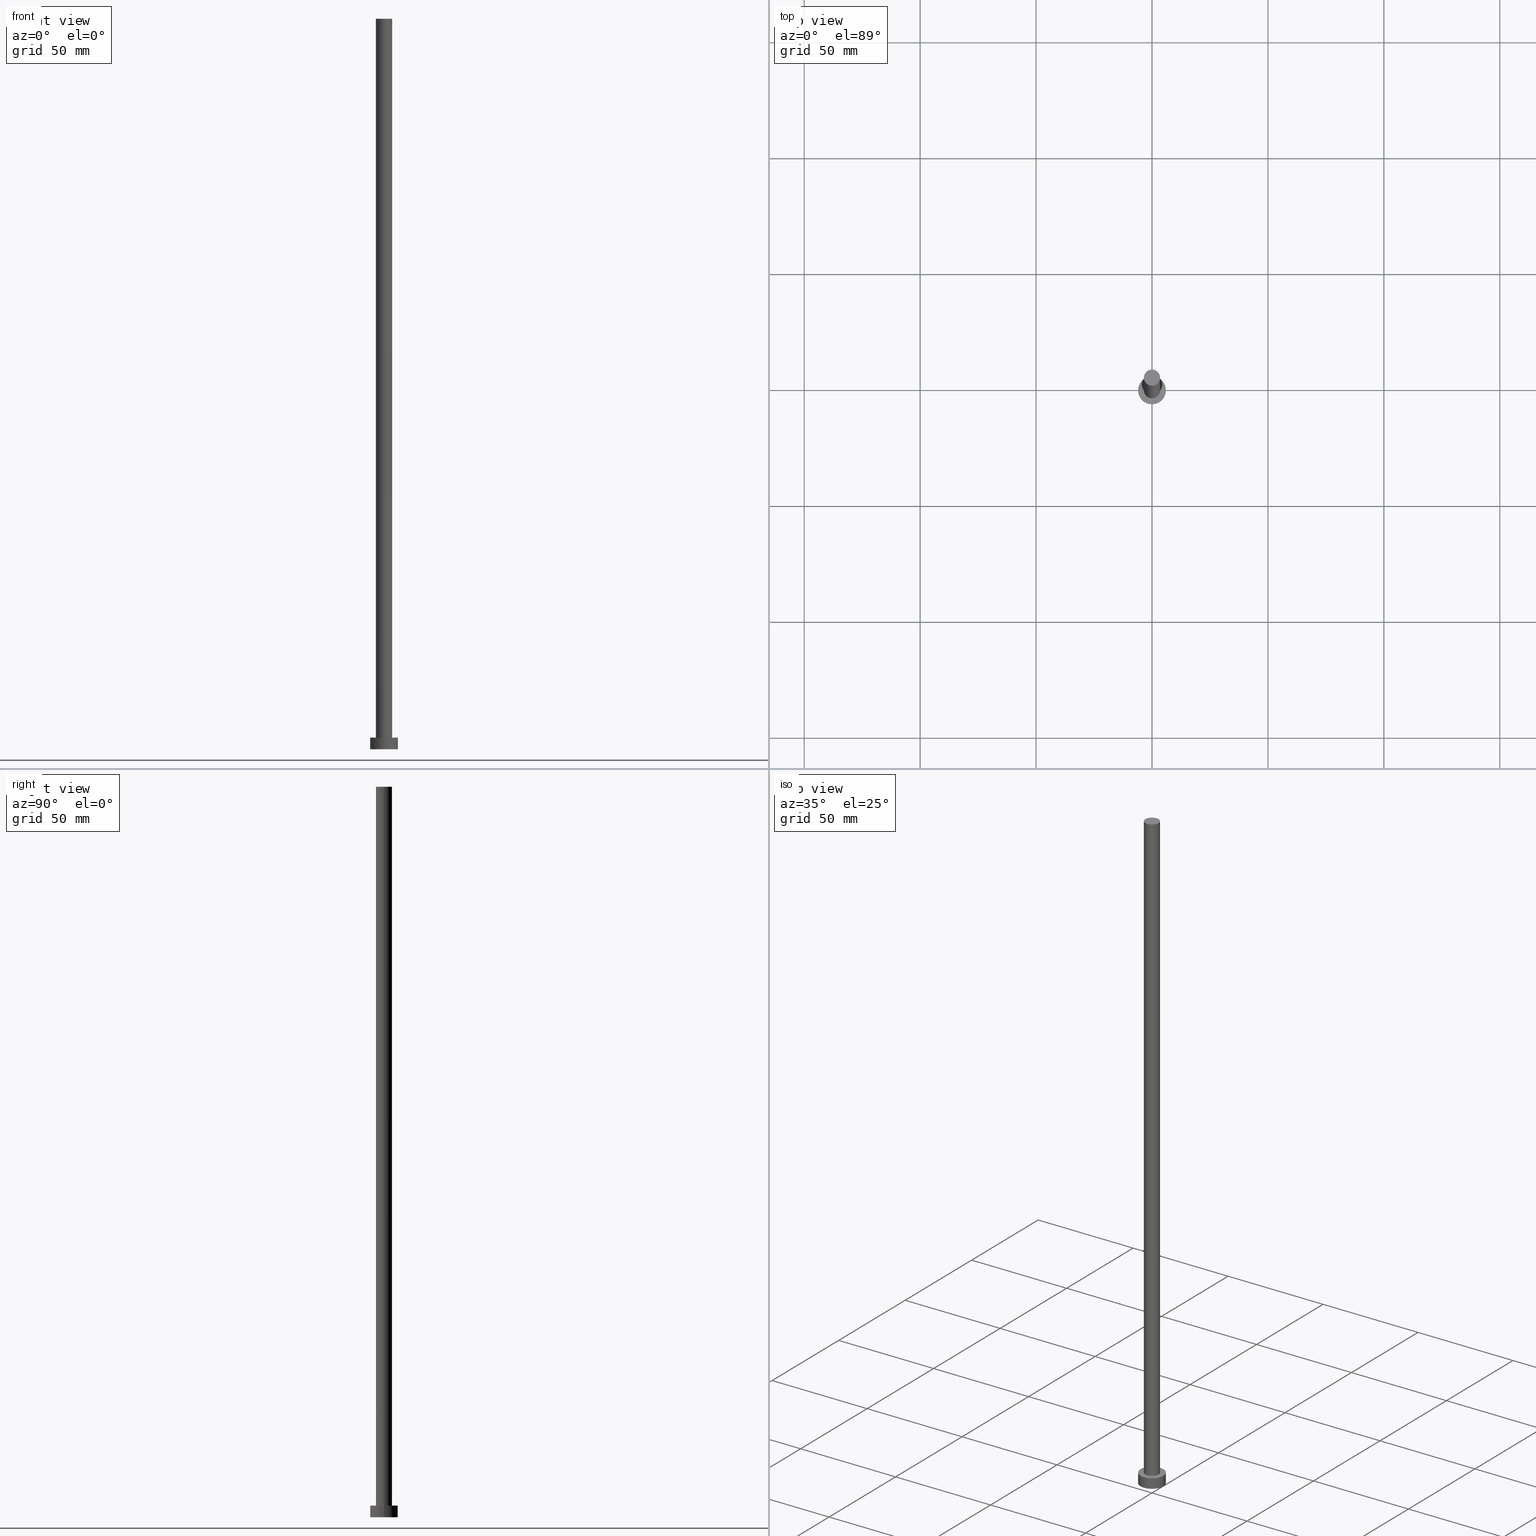
[diagram: canonical four-view strip — front | top / right | iso, engineering-drawing reading convention]
A machine part, canonical four-view strip (front | top / right | iso — engineering-drawing reading convention). The complete STEP part file that produces these views, byte-faithful:
ISO-10303-21;
HEADER;
FILE_DESCRIPTION (( 'STEP AP203' ),
    '1' );
FILE_NAME ('d23e.STEP',
    '2023-02-13T14:48:52',
    ( '' ),
    ( '' ),
    'SwSTEP 2.0',
    'SolidWorks 2019',
    '' );
FILE_SCHEMA (( 'CONFIG_CONTROL_DESIGN' ));
ENDSEC;

DATA;
#1 = EDGE_LOOP ( 'NONE', ( #119, #77, #221, #100 ) ) ;
#2 = DATE_TIME_ROLE ( 'creation_date' ) ;
#3 = APPROVAL_PERSON_ORGANIZATION ( #182, #51, #78 ) ;
#4 = ORIENTED_EDGE ( 'NONE', *, *, #212, .F. ) ;
#5 = CLOSED_SHELL ( 'NONE', ( #72, #253, #39, #215, #123, #49, #187 ) ) ;
#6 = ORIENTED_EDGE ( 'NONE', *, *, #227, .F. ) ;
#7 = DIRECTION ( 'NONE',  ( 0.000000000000000000, 0.000000000000000000, 1.000000000000000000 ) ) ;
#8 = DIRECTION ( 'NONE',  ( -0.000000000000000000, -0.000000000000000000, -1.000000000000000000 ) ) ;
#9 = LOCAL_TIME ( 15, 48, 52.00000000000000000, #219 ) ;
#10 = CARTESIAN_POINT ( 'NONE',  ( -3.500000000000000000, 0.000000000000000000, 5.000000000000000000 ) ) ;
#11 = CIRCLE ( 'NONE', #41, 6.000000000000000888 ) ;
#12 = DIRECTION ( 'NONE',  ( 0.000000000000000000, 0.000000000000000000, 1.000000000000000000 ) ) ;
#13 = DIRECTION ( 'NONE',  ( 1.000000000000000000, 0.000000000000000000, 0.000000000000000000 ) ) ;
#14 = FACE_OUTER_BOUND ( 'NONE', #156, .T. ) ;
#15 =( NAMED_UNIT ( * ) PLANE_ANGLE_UNIT ( ) SI_UNIT ( $, .RADIAN. ) );
#16 = AXIS2_PLACEMENT_3D ( 'NONE', #30, #248, #242 ) ;
#17 = DATE_AND_TIME ( #214, #71 ) ;
#18 = CC_DESIGN_DATE_AND_TIME_ASSIGNMENT ( #20, #2, ( #35 ) ) ;
#19 = MANIFOLD_SOLID_BREP ( 'P�idat vysunut�m3', #5 ) ;
#20 = DATE_AND_TIME ( #94, #9 ) ;
#21 = DIRECTION ( 'NONE',  ( 0.000000000000000000, 0.000000000000000000, 1.000000000000000000 ) ) ;
#22 = AXIS2_PLACEMENT_3D ( 'NONE', #56, #24, #73 ) ;
#23 = VERTEX_POINT ( 'NONE', #224 ) ;
#24 = DIRECTION ( 'NONE',  ( -0.000000000000000000, -0.000000000000000000, -1.000000000000000000 ) ) ;
#25 = VERTEX_POINT ( 'NONE', #141 ) ;
#26 = DIRECTION ( 'NONE',  ( 0.000000000000000000, 0.000000000000000000, 1.000000000000000000 ) ) ;
#27 = EDGE_CURVE ( 'NONE', #37, #173, #86, .T. ) ;
#28 = AXIS2_PLACEMENT_3D ( 'NONE', #64, #21, #216 ) ;
#29 = VERTEX_POINT ( 'NONE', #158 ) ;
#30 = CARTESIAN_POINT ( 'NONE',  ( 0.000000000000000000, 0.000000000000000000, 5.000000000000000000 ) ) ;
#31 = DIRECTION ( 'NONE',  ( -1.000000000000000000, 0.000000000000000000, 0.000000000000000000 ) ) ;
#32 = DIRECTION ( 'NONE',  ( 1.000000000000000000, 0.000000000000000000, -0.000000000000000000 ) ) ;
#33 = DIRECTION ( 'NONE',  ( -0.000000000000000000, -0.000000000000000000, -1.000000000000000000 ) ) ;
#34 = CARTESIAN_POINT ( 'NONE',  ( 0.000000000000000000, 0.000000000000000000, 315.0000000000000000 ) ) ;
#35 = PRODUCT_DEFINITION ( 'NEZN�M�', '', #152, #68 ) ;
#36 = AXIS2_PLACEMENT_3D ( 'NONE', #222, #8, #43 ) ;
#37 = VERTEX_POINT ( 'NONE', #165 ) ;
#38 = PERSON_AND_ORGANIZATION ( #137, #250 ) ;
#39 = ADVANCED_FACE ( 'NONE', ( #62 ), #190, .T. ) ;
#40 = FACE_OUTER_BOUND ( 'NONE', #98, .T. ) ;
#41 = AXIS2_PLACEMENT_3D ( 'NONE', #207, #46, #230 ) ;
#42 = ORIENTED_EDGE ( 'NONE', *, *, #69, .F. ) ;
#43 = DIRECTION ( 'NONE',  ( -1.000000000000000000, 0.000000000000000000, 0.000000000000000000 ) ) ;
#44 = CIRCLE ( 'NONE', #129, 6.000000000000000888 ) ;
#45 = CARTESIAN_POINT ( 'NONE',  ( -3.500000000000000000, 0.000000000000000000, 315.0000000000000000 ) ) ;
#46 = DIRECTION ( 'NONE',  ( 0.000000000000000000, 0.000000000000000000, 1.000000000000000000 ) ) ;
#47 = CC_DESIGN_APPROVAL ( #51, ( #152 ) ) ;
#48 = CARTESIAN_POINT ( 'NONE',  ( -6.000000000000000888, 0.000000000000000000, 5.000000000000000000 ) ) ;
#49 = ADVANCED_FACE ( 'NONE', ( #40 ), #186, .T. ) ;
#50 = ORIENTED_EDGE ( 'NONE', *, *, #240, .F. ) ;
#51 = APPROVAL ( #91, 'NEUR�EN�' ) ;
#52 = PERSON_AND_ORGANIZATION ( #137, #250 ) ;
#53 = PERSON_AND_ORGANIZATION ( #137, #250 ) ;
#54 = APPROVAL_DATE_TIME ( #17, #196 ) ;
#55 = DIRECTION ( 'NONE',  ( -0.000000000000000000, -0.000000000000000000, -1.000000000000000000 ) ) ;
#56 = CARTESIAN_POINT ( 'NONE',  ( 0.000000000000000000, 0.000000000000000000, 5.000000000000000000 ) ) ;
#57 = ORIENTED_EDGE ( 'NONE', *, *, #106, .F. ) ;
#58 = EDGE_CURVE ( 'NONE', #25, #29, #84, .T. ) ;
#59 = VERTEX_POINT ( 'NONE', #166 ) ;
#60 = DIRECTION ( 'NONE',  ( 1.000000000000000000, 0.000000000000000000, 0.000000000000000000 ) ) ;
#61 = COORDINATED_UNIVERSAL_TIME_OFFSET ( 1, 0, .AHEAD. ) ;
#62 = FACE_OUTER_BOUND ( 'NONE', #1, .T. ) ;
#63 = PERSON_AND_ORGANIZATION_ROLE ( 'classification_officer' ) ;
#64 = CARTESIAN_POINT ( 'NONE',  ( 0.000000000000000000, 0.000000000000000000, 0.000000000000000000 ) ) ;
#65 = VECTOR ( 'NONE', #33, 1000.000000000000000 ) ;
#66 = CC_DESIGN_PERSON_AND_ORGANIZATION_ASSIGNMENT ( #101, #63, ( #136 ) ) ;
#67 = LINE ( 'NONE', #124, #92 ) ;
#68 = DESIGN_CONTEXT ( 'detailed design', #115, 'design' ) ;
#69 = EDGE_CURVE ( 'NONE', #29, #112, #133, .T. ) ;
#70 = AXIS2_PLACEMENT_3D ( 'NONE', #34, #26, #32 ) ;
#71 = LOCAL_TIME ( 15, 48, 52.00000000000000000, #184 ) ;
#72 = ADVANCED_FACE ( 'NONE', ( #109 ), #93, .T. ) ;
#73 = DIRECTION ( 'NONE',  ( -1.000000000000000000, 0.000000000000000000, 0.000000000000000000 ) ) ;
#74 = DATE_AND_TIME ( #161, #102 ) ;
#75 =( LENGTH_UNIT ( ) NAMED_UNIT ( * ) SI_UNIT ( .MILLI., .METRE. ) );
#76 = AXIS2_PLACEMENT_3D ( 'NONE', #238, #55, #162 ) ;
#77 = ORIENTED_EDGE ( 'NONE', *, *, #95, .F. ) ;
#78 = APPROVAL_ROLE ( '' ) ;
#79 = APPLICATION_CONTEXT ( 'configuration controlled 3d designs of mechanical parts and assemblies' ) ;
#80 = ORIENTED_EDGE ( 'NONE', *, *, #197, .F. ) ;
#81 = ORIENTED_EDGE ( 'NONE', *, *, #197, .T. ) ;
#82 = CARTESIAN_POINT ( 'NONE',  ( 0.000000000000000000, 0.000000000000000000, 5.000000000000000000 ) ) ;
#83 = AXIS2_PLACEMENT_3D ( 'NONE', #206, #211, #252 ) ;
#84 = LINE ( 'NONE', #218, #146 ) ;
#85 = DATE_TIME_ROLE ( 'classification_date' ) ;
#86 = CIRCLE ( 'NONE', #150, 3.500000000000000000 ) ;
#87 = ORIENTED_EDGE ( 'NONE', *, *, #175, .F. ) ;
#88 =( GEOMETRIC_REPRESENTATION_CONTEXT ( 3 ) GLOBAL_UNCERTAINTY_ASSIGNED_CONTEXT ( ( #176 ) ) GLOBAL_UNIT_ASSIGNED_CONTEXT ( ( #75, #15, #153 ) ) REPRESENTATION_CONTEXT ( 'NONE', 'WORKASPACE' ) );
#89 = COORDINATED_UNIVERSAL_TIME_OFFSET ( 1, 0, .AHEAD. ) ;
#90 = CIRCLE ( 'NONE', #148, 3.500000000000000000 ) ;
#91 = APPROVAL_STATUS ( 'not_yet_approved' ) ;
#92 = VECTOR ( 'NONE', #194, 1000.000000000000000 ) ;
#93 = CYLINDRICAL_SURFACE ( 'NONE', #180, 3.500000000000000000 ) ;
#94 = CALENDAR_DATE ( 2023, 13, 2 ) ;
#95 = EDGE_CURVE ( 'NONE', #213, #25, #237, .T. ) ;
#96 = PERSON_AND_ORGANIZATION ( #137, #250 ) ;
#97 = ORIENTED_EDGE ( 'NONE', *, *, #95, .T. ) ;
#98 = EDGE_LOOP ( 'NONE', ( #57, #80, #202, #217 ) ) ;
#99 = CARTESIAN_POINT ( 'NONE',  ( -6.000000000000000888, 0.000000000000000000, 0.000000000000000000 ) ) ;
#100 = ORIENTED_EDGE ( 'NONE', *, *, #175, .T. ) ;
#101 = PERSON_AND_ORGANIZATION ( #137, #250 ) ;
#102 = LOCAL_TIME ( 15, 48, 52.00000000000000000, #89 ) ;
#103 = EDGE_CURVE ( 'NONE', #213, #112, #209, .T. ) ;
#104 = LOCAL_TIME ( 15, 48, 52.00000000000000000, #61 ) ;
#105 = EDGE_LOOP ( 'NONE', ( #87, #42 ) ) ;
#106 = EDGE_CURVE ( 'NONE', #23, #37, #67, .T. ) ;
#107 = DIRECTION ( 'NONE',  ( 1.000000000000000000, 0.000000000000000000, 0.000000000000000000 ) ) ;
#108 = DIRECTION ( 'NONE',  ( 1.000000000000000000, 0.000000000000000000, 0.000000000000000000 ) ) ;
#109 = FACE_OUTER_BOUND ( 'NONE', #130, .T. ) ;
#110 = PERSON_AND_ORGANIZATION ( #137, #250 ) ;
#111 = AXIS2_PLACEMENT_3D ( 'NONE', #128, #7, #167 ) ;
#112 = VERTEX_POINT ( 'NONE', #99 ) ;
#113 = APPROVAL_STATUS ( 'not_yet_approved' ) ;
#114 = DATE_AND_TIME ( #204, #104 ) ;
#115 = APPLICATION_CONTEXT ( 'configuration controlled 3d designs of mechanical parts and assemblies' ) ;
#116 = ORIENTED_EDGE ( 'NONE', *, *, #69, .T. ) ;
#117 = SHAPE_DEFINITION_REPRESENTATION ( #154, #251 ) ;
#118 = AXIS2_PLACEMENT_3D ( 'NONE', #171, #151, #107 ) ;
#119 = ORIENTED_EDGE ( 'NONE', *, *, #58, .F. ) ;
#120 = DIRECTION ( 'NONE',  ( -0.000000000000000000, -0.000000000000000000, -1.000000000000000000 ) ) ;
#121 = PERSON_AND_ORGANIZATION ( #137, #250 ) ;
#122 = ORIENTED_EDGE ( 'NONE', *, *, #58, .T. ) ;
#123 = ADVANCED_FACE ( 'NONE', ( #189 ), #149, .F. ) ;
#124 = CARTESIAN_POINT ( 'NONE',  ( 3.500000000000000000, 4.286263797015736595E-16, 315.0000000000000000 ) ) ;
#125 = DIRECTION ( 'NONE',  ( -0.000000000000000000, -0.000000000000000000, -1.000000000000000000 ) ) ;
#126 = LOCAL_TIME ( 15, 48, 52.00000000000000000, #225 ) ;
#127 = PRODUCT_RELATED_PRODUCT_CATEGORY ( 'detail', '', ( #178 ) ) ;
#128 = CARTESIAN_POINT ( 'NONE',  ( 0.000000000000000000, 0.000000000000000000, 0.000000000000000000 ) ) ;
#129 = AXIS2_PLACEMENT_3D ( 'NONE', #82, #192, #60 ) ;
#130 = EDGE_LOOP ( 'NONE', ( #163, #244, #201, #6 ) ) ;
#131 = CC_DESIGN_PERSON_AND_ORGANIZATION_ASSIGNMENT ( #110, #157, ( #35 ) ) ;
#132 = SECURITY_CLASSIFICATION_LEVEL ( 'unclassified' ) ;
#133 = CIRCLE ( 'NONE', #28, 6.000000000000000888 ) ;
#134 = DIRECTION ( 'NONE',  ( 0.000000000000000000, 0.000000000000000000, 1.000000000000000000 ) ) ;
#135 = APPROVAL_ROLE ( '' ) ;
#136 = SECURITY_CLASSIFICATION ( '', '', #132 ) ;
#137 = PERSON ( 'NEUR�EN�', 'NEUR�EN�', 'NEUR�EN�', ('NEUR�EN�'), ('NEUR�EN�'), ('NEUR�EN�') ) ;
#138 = EDGE_LOOP ( 'NONE', ( #50, #205 ) ) ;
#139 = APPROVAL_DATE_TIME ( #74, #51 ) ;
#140 = APPROVAL_STATUS ( 'not_yet_approved' ) ;
#141 = CARTESIAN_POINT ( 'NONE',  ( 6.000000000000000888, 7.347880794884120722E-16, 5.000000000000000000 ) ) ;
#142 = LINE ( 'NONE', #45, #231 ) ;
#143 = EDGE_LOOP ( 'NONE', ( #97, #181 ) ) ;
#144 = PLANE ( 'NONE',  #16 ) ;
#145 = DATE_AND_TIME ( #191, #126 ) ;
#146 = VECTOR ( 'NONE', #183, 1000.000000000000000 ) ;
#147 = CC_DESIGN_PERSON_AND_ORGANIZATION_ASSIGNMENT ( #96, #179, ( #178 ) ) ;
#148 = AXIS2_PLACEMENT_3D ( 'NONE', #170, #134, #108 ) ;
#149 = PLANE ( 'NONE',  #111 ) ;
#150 = AXIS2_PLACEMENT_3D ( 'NONE', #246, #241, #188 ) ;
#151 = DIRECTION ( 'NONE',  ( 0.000000000000000000, 0.000000000000000000, 1.000000000000000000 ) ) ;
#152 = PRODUCT_DEFINITION_FORMATION_WITH_SPECIFIED_SOURCE ( 'LIBOVOLN�', '', #178, .NOT_KNOWN. ) ;
#153 =( NAMED_UNIT ( * ) SI_UNIT ( $, .STERADIAN. ) SOLID_ANGLE_UNIT ( ) );
#154 = PRODUCT_DEFINITION_SHAPE ( 'NONE', 'NONE',  #35 ) ;
#155 = PERSON_AND_ORGANIZATION_ROLE ( 'design_supplier' ) ;
#156 = EDGE_LOOP ( 'NONE', ( #4, #122, #116, #233 ) ) ;
#157 = PERSON_AND_ORGANIZATION_ROLE ( 'creator' ) ;
#158 = CARTESIAN_POINT ( 'NONE',  ( 6.000000000000000888, 7.347880794884120722E-16, 0.000000000000000000 ) ) ;
#159 = APPROVAL_PERSON_ORGANIZATION ( #121, #208, #243 ) ;
#160 = CARTESIAN_POINT ( 'NONE',  ( 0.000000000000000000, 0.000000000000000000, 315.0000000000000000 ) ) ;
#161 = CALENDAR_DATE ( 2023, 13, 2 ) ;
#162 = DIRECTION ( 'NONE',  ( -1.000000000000000000, 0.000000000000000000, 0.000000000000000000 ) ) ;
#163 = ORIENTED_EDGE ( 'NONE', *, *, #235, .F. ) ;
#164 = FACE_OUTER_BOUND ( 'NONE', #143, .T. ) ;
#165 = CARTESIAN_POINT ( 'NONE',  ( 3.500000000000000000, 4.286263797015736595E-16, 5.000000000000000000 ) ) ;
#166 = CARTESIAN_POINT ( 'NONE',  ( -3.500000000000000000, 0.000000000000000000, 315.0000000000000000 ) ) ;
#167 = DIRECTION ( 'NONE',  ( 1.000000000000000000, 0.000000000000000000, -0.000000000000000000 ) ) ;
#168 = CARTESIAN_POINT ( 'NONE',  ( -6.000000000000000888, 0.000000000000000000, 5.000000000000000000 ) ) ;
#169 = CC_DESIGN_APPROVAL ( #208, ( #136 ) ) ;
#170 = CARTESIAN_POINT ( 'NONE',  ( 0.000000000000000000, 0.000000000000000000, 5.000000000000000000 ) ) ;
#171 = CARTESIAN_POINT ( 'NONE',  ( 0.000000000000000000, 0.000000000000000000, 0.000000000000000000 ) ) ;
#172 = CC_DESIGN_DATE_AND_TIME_ASSIGNMENT ( #145, #85, ( #136 ) ) ;
#173 = VERTEX_POINT ( 'NONE', #10 ) ;
#174 = AXIS2_PLACEMENT_3D ( 'NONE', #195, #247, #13 ) ;
#175 = EDGE_CURVE ( 'NONE', #112, #29, #11, .T. ) ;
#176 = UNCERTAINTY_MEASURE_WITH_UNIT (LENGTH_MEASURE( 1.000000000000000082E-05 ), #75, 'distance_accuracy_value', 'NONE');
#177 = PERSON_AND_ORGANIZATION_ROLE ( 'creator' ) ;
#178 = PRODUCT ( 'd23e', 'd23e', '', ( #254 ) ) ;
#179 = PERSON_AND_ORGANIZATION_ROLE ( 'design_owner' ) ;
#180 = AXIS2_PLACEMENT_3D ( 'NONE', #160, #125, #31 ) ;
#181 = ORIENTED_EDGE ( 'NONE', *, *, #212, .T. ) ;
#182 = PERSON_AND_ORGANIZATION ( #137, #250 ) ;
#183 = DIRECTION ( 'NONE',  ( -0.000000000000000000, -0.000000000000000000, -1.000000000000000000 ) ) ;
#184 = COORDINATED_UNIVERSAL_TIME_OFFSET ( 1, 0, .AHEAD. ) ;
#185 = CIRCLE ( 'NONE', #174, 3.500000000000000000 ) ;
#186 = CYLINDRICAL_SURFACE ( 'NONE', #36, 3.500000000000000000 ) ;
#187 = ADVANCED_FACE ( 'NONE', ( #210 ), #228, .T. ) ;
#188 = DIRECTION ( 'NONE',  ( 1.000000000000000000, 0.000000000000000000, 0.000000000000000000 ) ) ;
#189 = FACE_OUTER_BOUND ( 'NONE', #105, .T. ) ;
#190 = CYLINDRICAL_SURFACE ( 'NONE', #22, 6.000000000000000888 ) ;
#191 = CALENDAR_DATE ( 2023, 13, 2 ) ;
#192 = DIRECTION ( 'NONE',  ( 0.000000000000000000, 0.000000000000000000, 1.000000000000000000 ) ) ;
#193 = CIRCLE ( 'NONE', #83, 3.500000000000000000 ) ;
#194 = DIRECTION ( 'NONE',  ( -0.000000000000000000, -0.000000000000000000, -1.000000000000000000 ) ) ;
#195 = CARTESIAN_POINT ( 'NONE',  ( 0.000000000000000000, 0.000000000000000000, 315.0000000000000000 ) ) ;
#196 = APPROVAL ( #113, 'NEUR�EN�' ) ;
#197 = EDGE_CURVE ( 'NONE', #59, #23, #185, .T. ) ;
#198 = CC_DESIGN_SECURITY_CLASSIFICATION ( #136, ( #152 ) ) ;
#199 = ORIENTED_EDGE ( 'NONE', *, *, #235, .T. ) ;
#200 = AXIS2_PLACEMENT_3D ( 'NONE', #249, #12, #229 ) ;
#201 = ORIENTED_EDGE ( 'NONE', *, *, #27, .T. ) ;
#202 = ORIENTED_EDGE ( 'NONE', *, *, #227, .T. ) ;
#203 = CC_DESIGN_PERSON_AND_ORGANIZATION_ASSIGNMENT ( #52, #155, ( #152 ) ) ;
#204 = CALENDAR_DATE ( 2023, 13, 2 ) ;
#205 = ORIENTED_EDGE ( 'NONE', *, *, #27, .F. ) ;
#206 = CARTESIAN_POINT ( 'NONE',  ( 0.000000000000000000, 0.000000000000000000, 315.0000000000000000 ) ) ;
#207 = CARTESIAN_POINT ( 'NONE',  ( 0.000000000000000000, 0.000000000000000000, 0.000000000000000000 ) ) ;
#208 = APPROVAL ( #140, 'NEUR�EN�' ) ;
#209 = LINE ( 'NONE', #48, #65 ) ;
#210 = FACE_OUTER_BOUND ( 'NONE', #255, .T. ) ;
#211 = DIRECTION ( 'NONE',  ( 0.000000000000000000, 0.000000000000000000, 1.000000000000000000 ) ) ;
#212 = EDGE_CURVE ( 'NONE', #25, #213, #44, .T. ) ;
#213 = VERTEX_POINT ( 'NONE', #168 ) ;
#214 = CALENDAR_DATE ( 2023, 13, 2 ) ;
#215 = ADVANCED_FACE ( 'NONE', ( #245, #164 ), #144, .T. ) ;
#216 = DIRECTION ( 'NONE',  ( 1.000000000000000000, 0.000000000000000000, 0.000000000000000000 ) ) ;
#217 = ORIENTED_EDGE ( 'NONE', *, *, #240, .T. ) ;
#218 = CARTESIAN_POINT ( 'NONE',  ( 6.000000000000000888, 7.347880794884120722E-16, 5.000000000000000000 ) ) ;
#219 = COORDINATED_UNIVERSAL_TIME_OFFSET ( 1, 0, .AHEAD. ) ;
#220 = CC_DESIGN_PERSON_AND_ORGANIZATION_ASSIGNMENT ( #38, #177, ( #152 ) ) ;
#221 = ORIENTED_EDGE ( 'NONE', *, *, #103, .T. ) ;
#222 = CARTESIAN_POINT ( 'NONE',  ( 0.000000000000000000, 0.000000000000000000, 315.0000000000000000 ) ) ;
#223 = CC_DESIGN_APPROVAL ( #196, ( #35 ) ) ;
#224 = CARTESIAN_POINT ( 'NONE',  ( 3.500000000000000000, 4.286263797015736595E-16, 315.0000000000000000 ) ) ;
#225 = COORDINATED_UNIVERSAL_TIME_OFFSET ( 1, 0, .AHEAD. ) ;
#226 = APPROVAL_DATE_TIME ( #114, #208 ) ;
#227 = EDGE_CURVE ( 'NONE', #59, #173, #142, .T. ) ;
#228 = PLANE ( 'NONE',  #70 ) ;
#229 = DIRECTION ( 'NONE',  ( 1.000000000000000000, 0.000000000000000000, 0.000000000000000000 ) ) ;
#230 = DIRECTION ( 'NONE',  ( 1.000000000000000000, 0.000000000000000000, 0.000000000000000000 ) ) ;
#231 = VECTOR ( 'NONE', #120, 1000.000000000000000 ) ;
#232 = CYLINDRICAL_SURFACE ( 'NONE', #76, 6.000000000000000888 ) ;
#233 = ORIENTED_EDGE ( 'NONE', *, *, #103, .F. ) ;
#234 = APPLICATION_PROTOCOL_DEFINITION ( 'international standard', 'config_control_design', 1994, #79 ) ;
#235 = EDGE_CURVE ( 'NONE', #23, #59, #193, .T. ) ;
#236 = APPLICATION_PROTOCOL_DEFINITION ( 'international standard', 'config_control_design', 1994, #115 ) ;
#237 = CIRCLE ( 'NONE', #200, 6.000000000000000888 ) ;
#238 = CARTESIAN_POINT ( 'NONE',  ( 0.000000000000000000, 0.000000000000000000, 5.000000000000000000 ) ) ;
#239 = APPROVAL_PERSON_ORGANIZATION ( #53, #196, #135 ) ;
#240 = EDGE_CURVE ( 'NONE', #173, #37, #90, .T. ) ;
#241 = DIRECTION ( 'NONE',  ( 0.000000000000000000, 0.000000000000000000, 1.000000000000000000 ) ) ;
#242 = DIRECTION ( 'NONE',  ( 1.000000000000000000, 0.000000000000000000, -0.000000000000000000 ) ) ;
#243 = APPROVAL_ROLE ( '' ) ;
#244 = ORIENTED_EDGE ( 'NONE', *, *, #106, .T. ) ;
#245 = FACE_BOUND ( 'NONE', #138, .T. ) ;
#246 = CARTESIAN_POINT ( 'NONE',  ( 0.000000000000000000, 0.000000000000000000, 5.000000000000000000 ) ) ;
#247 = DIRECTION ( 'NONE',  ( 0.000000000000000000, 0.000000000000000000, 1.000000000000000000 ) ) ;
#248 = DIRECTION ( 'NONE',  ( 0.000000000000000000, 0.000000000000000000, 1.000000000000000000 ) ) ;
#249 = CARTESIAN_POINT ( 'NONE',  ( 0.000000000000000000, 0.000000000000000000, 5.000000000000000000 ) ) ;
#250 = ORGANIZATION ( 'NEUR�EN�', 'NEUR�EN�', '' ) ;
#251 = ADVANCED_BREP_SHAPE_REPRESENTATION ( 'd23e', ( #19, #118 ), #88 ) ;
#252 = DIRECTION ( 'NONE',  ( 1.000000000000000000, 0.000000000000000000, 0.000000000000000000 ) ) ;
#253 = ADVANCED_FACE ( 'NONE', ( #14 ), #232, .T. ) ;
#254 = MECHANICAL_CONTEXT ( 'NONE', #79, 'mechanical' ) ;
#255 = EDGE_LOOP ( 'NONE', ( #81, #199 ) ) ;
ENDSEC;
END-ISO-10303-21;
